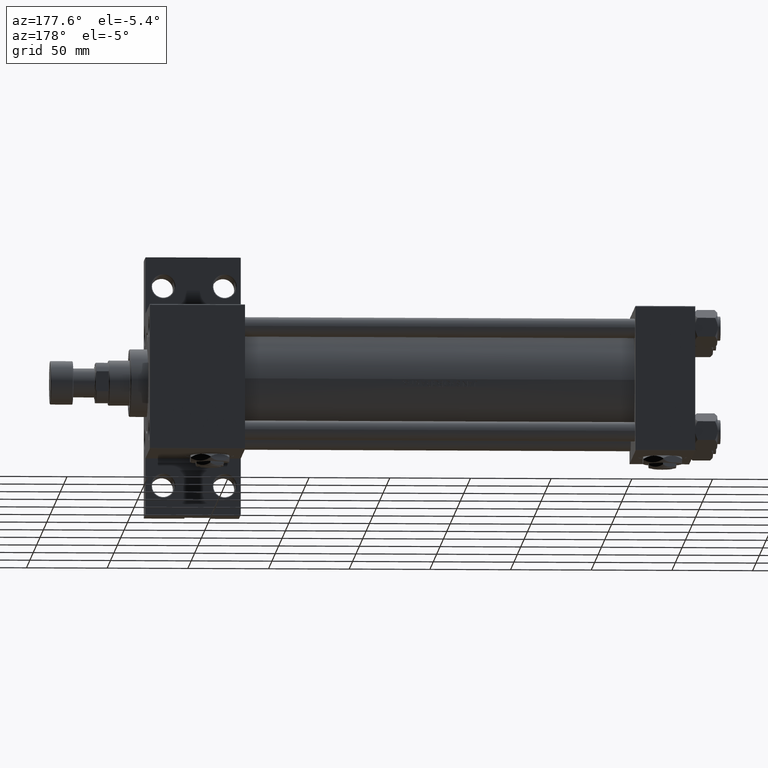
[diagram: clean part render]
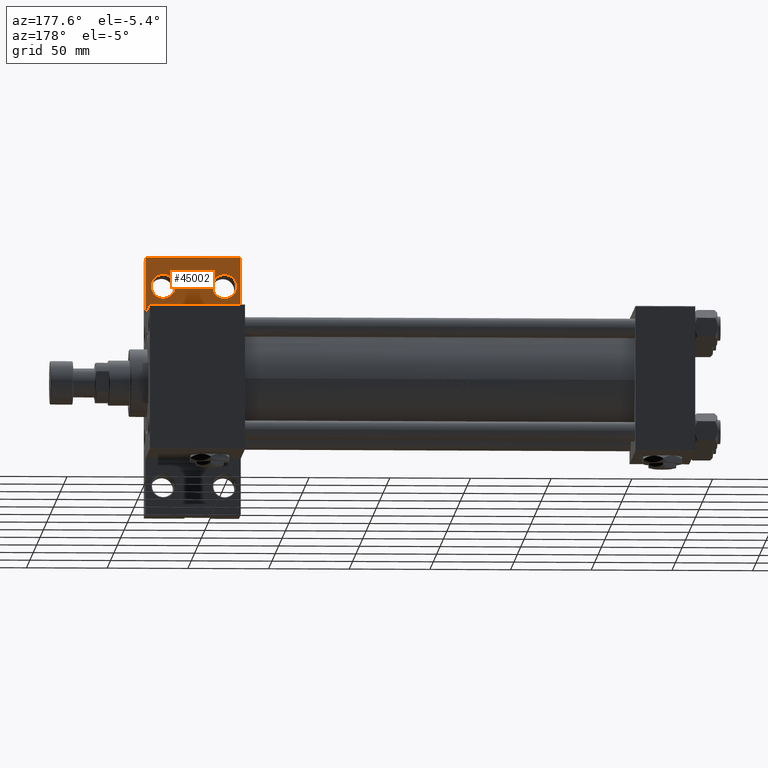
[diagram: same view with one face highlighted and labeled with its STEP entity id]
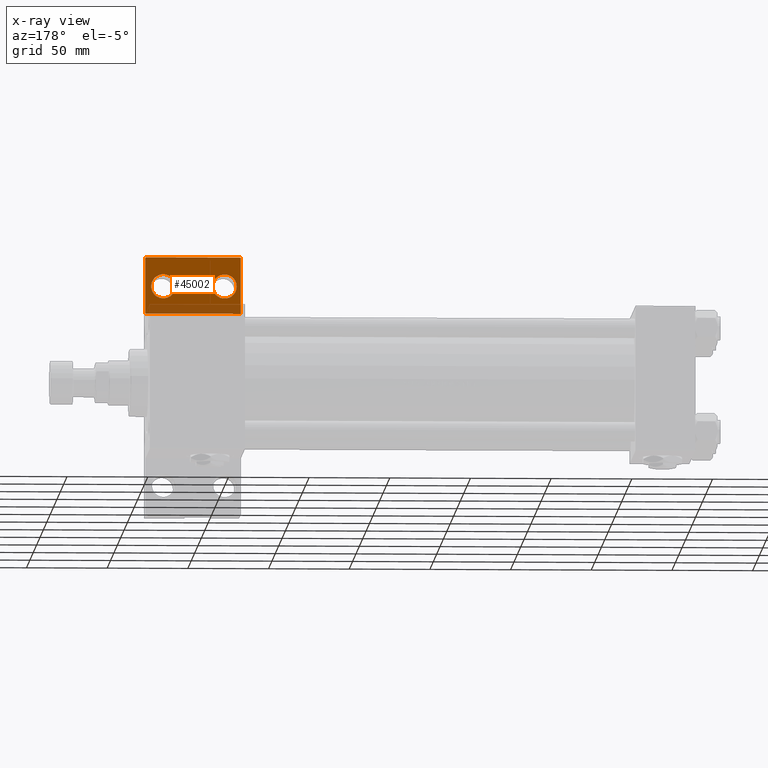
[diagram: x-ray of the same camera — body ghosted, the highlighted face saturated]
A machine part, auxiliary view. The second image highlights one B-rep face of the part: STEP entity #45002.
The next image is the same camera in x-ray: the body ghosted, the highlighted face saturated — about 20% of this face is hidden behind the body in this view.
In plain terms, the highlighted planar face has unit normal (0, -1, 0).
Its self-contained STEP definition (entity closure, byte-faithful):
#159 = DIRECTION ( 'NONE',  ( -1.000000000000000000, 4.704334850106595794E-16, -0.000000000000000000 ) ) ;
#359 = DIRECTION ( 'NONE',  ( -1.000000000000000000, 0.000000000000000000, 0.000000000000000000 ) ) ;
#870 = ORIENTED_EDGE ( 'NONE', *, *, #3224, .F. ) ;
#1534 = DIRECTION ( 'NONE',  ( 0.000000000000000000, 0.000000000000000000, -1.000000000000000000 ) ) ;
#1924 = EDGE_CURVE ( 'NONE', #14570, #4807, #25894, .T. ) ;
#1974 = ORIENTED_EDGE ( 'NONE', *, *, #8015, .F. ) ;
#2270 = DIRECTION ( 'NONE',  ( -1.000000000000000000, 0.000000000000000000, 0.000000000000000000 ) ) ;
#2337 = VERTEX_POINT ( 'NONE', #13904 ) ;
#2376 = ORIENTED_EDGE ( 'NONE', *, *, #19234, .F. ) ;
#2611 = CARTESIAN_POINT ( 'NONE',  ( 334.4994999999999550, -62.00000000000000000, -19.00000000000000000 ) ) ;
#3224 = EDGE_CURVE ( 'NONE', #48659, #4580, #34453, .T. ) ;
#3774 = EDGE_CURVE ( 'NONE', #2337, #10687, #23496, .T. ) ;
#3909 = VECTOR ( 'NONE', #22260, 1000.000000000000000 ) ;
#4580 = VERTEX_POINT ( 'NONE', #5369 ) ;
#4585 = DIRECTION ( 'NONE',  ( -1.000000000000000000, 0.000000000000000000, 0.000000000000000000 ) ) ;
#4807 = VERTEX_POINT ( 'NONE', #22369 ) ;
#5369 = CARTESIAN_POINT ( 'NONE',  ( 278.9999999999999432, -80.00000000000001421, -19.00000000000000000 ) ) ;
#5733 = CARTESIAN_POINT ( 'NONE',  ( 278.9999999999999432, -45.00000000000000000, -19.00000000000000000 ) ) ;
#6316 = DIRECTION ( 'NONE',  ( -1.000000000000000000, 0.000000000000000000, -0.000000000000000000 ) ) ;
#6379 = ORIENTED_EDGE ( 'NONE', *, *, #33153, .T. ) ;
#6613 = LINE ( 'NONE', #37077, #8404 ) ;
#8015 = EDGE_CURVE ( 'NONE', #26683, #18640, #15367, .T. ) ;
#8404 = VECTOR ( 'NONE', #29980, 1000.000000000000000 ) ;
#8773 = AXIS2_PLACEMENT_3D ( 'NONE', #25924, #26177, #38329 ) ;
#9380 = FACE_BOUND ( 'NONE', #40544, .T. ) ;
#10687 = VERTEX_POINT ( 'NONE', #17005 ) ;
#10896 = DIRECTION ( 'NONE',  ( 0.000000000000000000, 1.000000000000000000, 0.000000000000000000 ) ) ;
#13904 = CARTESIAN_POINT ( 'NONE',  ( 281.5004999999999882, -62.00000000000002842, -19.00000000000000000 ) ) ;
#14129 = EDGE_CURVE ( 'NONE', #4580, #26683, #41863, .T. ) ;
#14231 = ORIENTED_EDGE ( 'NONE', *, *, #3774, .T. ) ;
#14453 = DIRECTION ( 'NONE',  ( 0.000000000000000000, 0.000000000000000000, -1.000000000000000000 ) ) ;
#14570 = VERTEX_POINT ( 'NONE', #2611 ) ;
#15367 = LINE ( 'NONE', #30370, #3909 ) ;
#15653 = AXIS2_PLACEMENT_3D ( 'NONE', #43936, #1534, #4585 ) ;
#17005 = CARTESIAN_POINT ( 'NONE',  ( 296.4994999999999550, -62.00000000000002842, -19.00000000000000000 ) ) ;
#17261 = CARTESIAN_POINT ( 'NONE',  ( 0.000000000000000000, 0.000000000000000000, -19.00000000000000000 ) ) ;
#18524 = CIRCLE ( 'NONE', #8773, 7.499499999999992284 ) ;
#18640 = VERTEX_POINT ( 'NONE', #25039 ) ;
#18650 = AXIS2_PLACEMENT_3D ( 'NONE', #35144, #36150, #359 ) ;
#19234 = EDGE_CURVE ( 'NONE', #18640, #48659, #6613, .T. ) ;
#19622 = ORIENTED_EDGE ( 'NONE', *, *, #1924, .T. ) ;
#20407 = ORIENTED_EDGE ( 'NONE', *, *, #46945, .T. ) ;
#22260 = DIRECTION ( 'NONE',  ( 1.000000000000000000, 0.000000000000000000, 0.000000000000000000 ) ) ;
#22357 = ORIENTED_EDGE ( 'NONE', *, *, #14129, .F. ) ;
#22369 = CARTESIAN_POINT ( 'NONE',  ( 319.5004999999999882, -62.00000000000000000, -19.00000000000000000 ) ) ;
#23088 = CARTESIAN_POINT ( 'NONE',  ( 278.9999999999999432, -80.00000000000001421, -19.00000000000000000 ) ) ;
#23496 = CIRCLE ( 'NONE', #18650, 7.499499999999992284 ) ;
#25039 = CARTESIAN_POINT ( 'NONE',  ( 337.9999999999999432, -44.99999999999999289, -18.99999999999997513 ) ) ;
#25894 = CIRCLE ( 'NONE', #50161, 7.499499999999992284 ) ;
#25924 = CARTESIAN_POINT ( 'NONE',  ( 289.0000000000000000, -62.00000000000002842, -19.00000000000000000 ) ) ;
#26177 = DIRECTION ( 'NONE',  ( 0.000000000000000000, 0.000000000000000000, -1.000000000000000000 ) ) ;
#26683 = VERTEX_POINT ( 'NONE', #5733 ) ;
#27571 = VECTOR ( 'NONE', #159, 1000.000000000000000 ) ;
#29950 = CARTESIAN_POINT ( 'NONE',  ( 326.9999999999999432, -62.00000000000000000, -19.00000000000000000 ) ) ;
#29980 = DIRECTION ( 'NONE',  ( -0.000000000000000000, -1.000000000000000000, -0.000000000000000000 ) ) ;
#30370 = CARTESIAN_POINT ( 'NONE',  ( 278.9999999999999432, -45.00000000000000000, -19.00000000000000000 ) ) ;
#30977 = AXIS2_PLACEMENT_3D ( 'NONE', #17261, #40859, #6316 ) ;
#33153 = EDGE_CURVE ( 'NONE', #10687, #2337, #18524, .T. ) ;
#34453 = LINE ( 'NONE', #45850, #27571 ) ;
#35144 = CARTESIAN_POINT ( 'NONE',  ( 289.0000000000000000, -62.00000000000002842, -19.00000000000000000 ) ) ;
#36150 = DIRECTION ( 'NONE',  ( 0.000000000000000000, 0.000000000000000000, -1.000000000000000000 ) ) ;
#36804 = FACE_BOUND ( 'NONE', #41436, .T. ) ;
#37077 = CARTESIAN_POINT ( 'NONE',  ( 337.9999999999999432, -80.00000000000004263, -19.00000000000000000 ) ) ;
#37532 = CIRCLE ( 'NONE', #15653, 7.499499999999992284 ) ;
#38329 = DIRECTION ( 'NONE',  ( -1.000000000000000000, 0.000000000000000000, 0.000000000000000000 ) ) ;
#40544 = EDGE_LOOP ( 'NONE', ( #19622, #20407 ) ) ;
#40859 = DIRECTION ( 'NONE',  ( 0.000000000000000000, 0.000000000000000000, -1.000000000000000000 ) ) ;
#41358 = PLANE ( 'NONE',  #30977 ) ;
#41436 = EDGE_LOOP ( 'NONE', ( #6379, #14231 ) ) ;
#41863 = LINE ( 'NONE', #23088, #46311 ) ;
#42473 = CARTESIAN_POINT ( 'NONE',  ( 337.9999999999999432, -80.00000000000004263, -19.00000000000000000 ) ) ;
#43936 = CARTESIAN_POINT ( 'NONE',  ( 326.9999999999999432, -62.00000000000000000, -19.00000000000000000 ) ) ;
#45002 = ADVANCED_FACE ( 'NONE', ( #9380, #36804, #47957 ), #41358, .F. ) ;
#45850 = CARTESIAN_POINT ( 'NONE',  ( 278.9999999999999432, -80.00000000000001421, -19.00000000000000000 ) ) ;
#46311 = VECTOR ( 'NONE', #10896, 1000.000000000000000 ) ;
#46945 = EDGE_CURVE ( 'NONE', #4807, #14570, #37532, .T. ) ;
#47523 = EDGE_LOOP ( 'NONE', ( #2376, #1974, #22357, #870 ) ) ;
#47957 = FACE_OUTER_BOUND ( 'NONE', #47523, .T. ) ;
#48659 = VERTEX_POINT ( 'NONE', #42473 ) ;
#50161 = AXIS2_PLACEMENT_3D ( 'NONE', #29950, #14453, #2270 ) ;